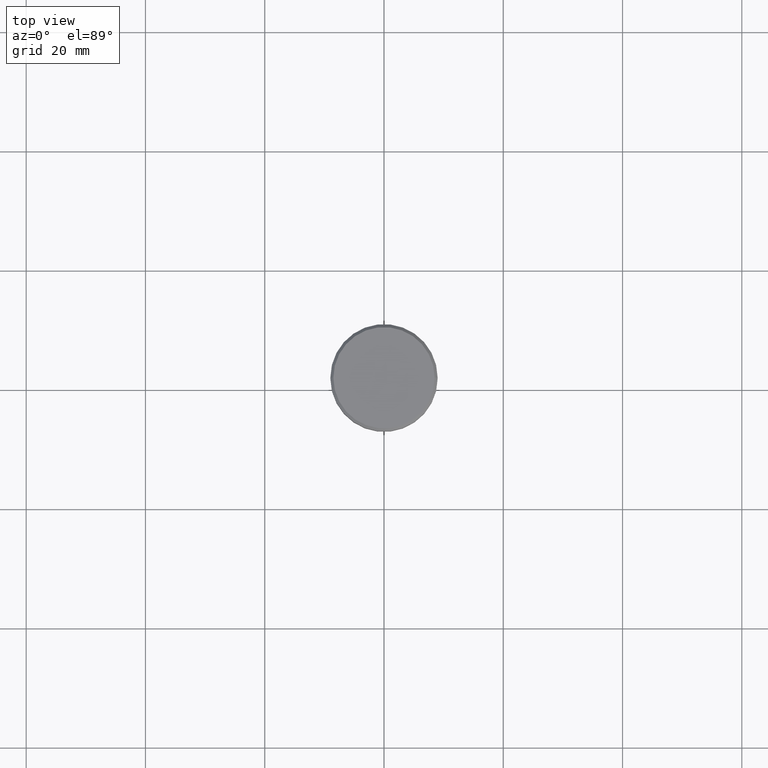
[diagram: clean part render]
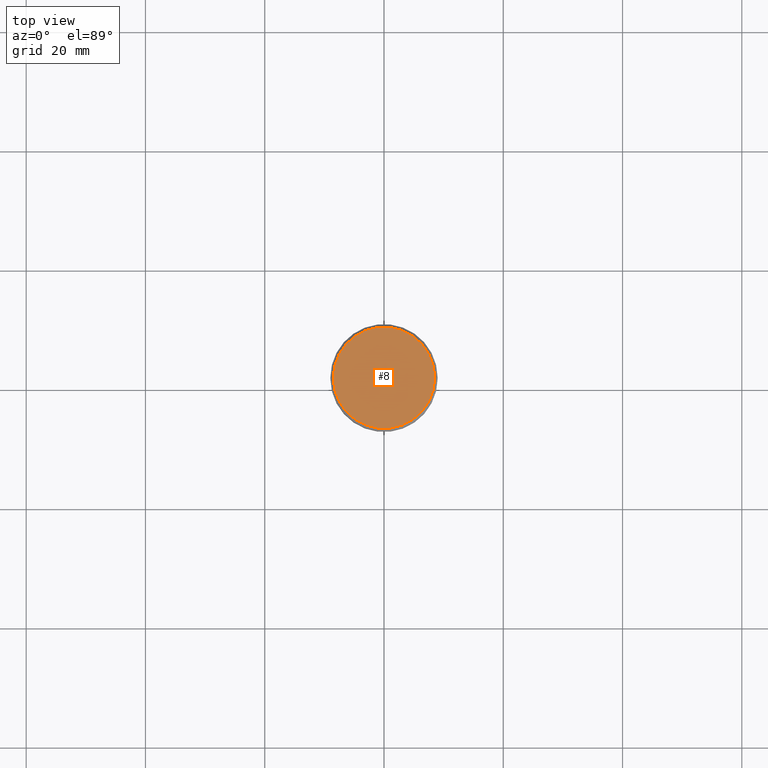
[diagram: same view with one face highlighted and labeled with its STEP entity id]
A machine part, top view. The second image highlights one B-rep face of the part: STEP entity #8.
In plain terms, the highlighted planar face has unit normal (0, -0, 1).
Its self-contained STEP definition (entity closure, byte-faithful):
#8 = ADVANCED_FACE ( 'NONE', ( #99 ), #589, .T. ) ;
#18 = DIRECTION ( 'NONE',  ( -0.000000000000000000, -0.000000000000000000, 1.000000000000000000 ) ) ;
#25 = AXIS2_PLACEMENT_3D ( 'NONE', #838, #102, #1012 ) ;
#31 = EDGE_CURVE ( 'NONE', #959, #1050, #166, .T. ) ;
#53 = ORIENTED_EDGE ( 'NONE', *, *, #716, .T. ) ;
#99 = FACE_OUTER_BOUND ( 'NONE', #509, .T. ) ;
#102 = DIRECTION ( 'NONE',  ( 0.000000000000000000, -0.000000000000000000, 1.000000000000000000 ) ) ;
#166 = CIRCLE ( 'NONE', #697, 8.500000000000003553 ) ;
#195 = DIRECTION ( 'NONE',  ( -0.000000000000000000, -0.000000000000000000, 1.000000000000000000 ) ) ;
#230 = CIRCLE ( 'NONE', #674, 8.500000000000003553 ) ;
#509 = EDGE_LOOP ( 'NONE', ( #807, #53 ) ) ;
#527 = DIRECTION ( 'NONE',  ( 1.000000000000000000, 0.000000000000000000, 0.000000000000000000 ) ) ;
#589 = PLANE ( 'NONE',  #25 ) ;
#595 = DIRECTION ( 'NONE',  ( 1.000000000000000000, 0.000000000000000000, 0.000000000000000000 ) ) ;
#674 = AXIS2_PLACEMENT_3D ( 'NONE', #774, #195, #527 ) ;
#697 = AXIS2_PLACEMENT_3D ( 'NONE', #845, #18, #595 ) ;
#704 = CARTESIAN_POINT ( 'NONE',  ( -8.500000000000003553, 0.000000000000000000, 0.000000000000000000 ) ) ;
#716 = EDGE_CURVE ( 'NONE', #1050, #959, #230, .T. ) ;
#757 = CARTESIAN_POINT ( 'NONE',  ( 8.500000000000003553, 1.071565949253934321E-15, 0.000000000000000000 ) ) ;
#774 = CARTESIAN_POINT ( 'NONE',  ( 0.000000000000000000, 0.000000000000000000, 0.000000000000000000 ) ) ;
#807 = ORIENTED_EDGE ( 'NONE', *, *, #31, .T. ) ;
#838 = CARTESIAN_POINT ( 'NONE',  ( 0.000000000000000000, 0.000000000000000000, 0.000000000000000000 ) ) ;
#845 = CARTESIAN_POINT ( 'NONE',  ( 0.000000000000000000, 0.000000000000000000, 0.000000000000000000 ) ) ;
#959 = VERTEX_POINT ( 'NONE', #704 ) ;
#1012 = DIRECTION ( 'NONE',  ( 1.000000000000000000, 0.000000000000000000, 0.000000000000000000 ) ) ;
#1050 = VERTEX_POINT ( 'NONE', #757 ) ;